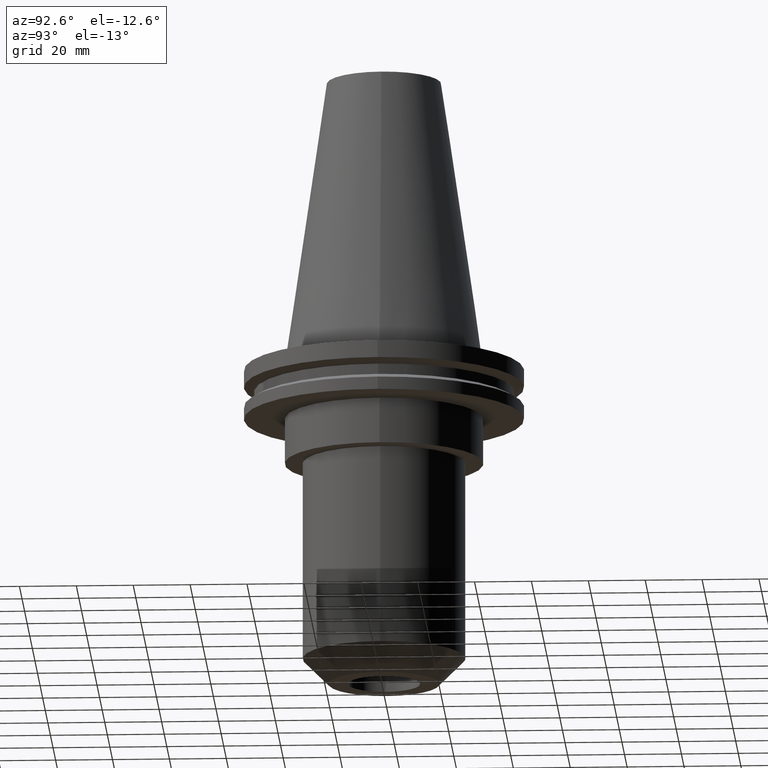
[diagram: clean part render]
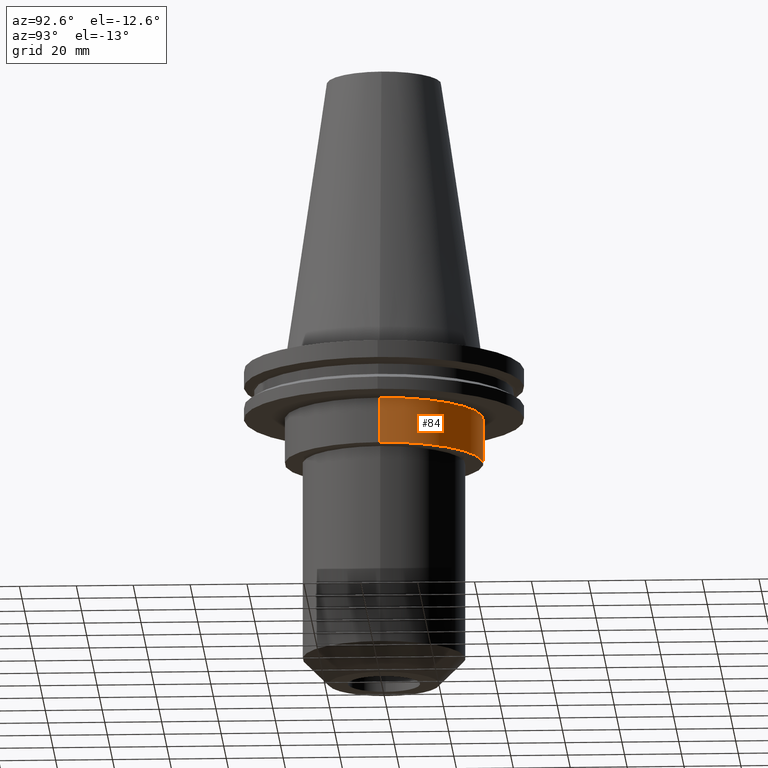
[diagram: same view with one face highlighted and labeled with its STEP entity id]
A machine part, auxiliary view. The second image highlights one B-rep face of the part: STEP entity #84.
In plain terms, the highlighted cylindrical surface (partial cylindrical patch) has radius 34.925 mm, axis along (-0, -0, 1).
Its self-contained STEP definition (entity closure, byte-faithful):
#1 = DIRECTION ( 'NONE',  ( 1.000000000000000000, 0.000000000000000000, 0.000000000000000000 ) ) ;
#25 = LINE ( 'NONE', #374, #527 ) ;
#36 = VECTOR ( 'NONE', #489, 1000.000000000000000 ) ;
#84 = ADVANCED_FACE ( 'NONE', ( #461 ), #194, .T. ) ;
#98 = VERTEX_POINT ( 'NONE', #187 ) ;
#100 = DIRECTION ( 'NONE',  ( -0.000000000000000000, -0.000000000000000000, 1.000000000000000000 ) ) ;
#103 = AXIS2_PLACEMENT_3D ( 'NONE', #751, #100, #370 ) ;
#113 = ORIENTED_EDGE ( 'NONE', *, *, #847, .T. ) ;
#134 = CARTESIAN_POINT ( 'NONE',  ( 34.92499999999999716, 0.000000000000000000, -35.04999999999999716 ) ) ;
#135 = CARTESIAN_POINT ( 'NONE',  ( 0.000000000000000000, 0.000000000000000000, 101.5999999999999943 ) ) ;
#160 = DIRECTION ( 'NONE',  ( -0.000000000000000000, -0.000000000000000000, 1.000000000000000000 ) ) ;
#173 = CARTESIAN_POINT ( 'NONE',  ( 34.92499999999999716, 0.000000000000000000, 101.5999999999999943 ) ) ;
#186 = AXIS2_PLACEMENT_3D ( 'NONE', #351, #601, #1 ) ;
#187 = CARTESIAN_POINT ( 'NONE',  ( 34.92499999999999716, 0.000000000000000000, -19.04999999999999716 ) ) ;
#194 = CYLINDRICAL_SURFACE ( 'NONE', #669, 34.92499999999999716 ) ;
#278 = EDGE_LOOP ( 'NONE', ( #286, #113, #451, #600 ) ) ;
#286 = ORIENTED_EDGE ( 'NONE', *, *, #757, .T. ) ;
#322 = VERTEX_POINT ( 'NONE', #418 ) ;
#351 = CARTESIAN_POINT ( 'NONE',  ( 0.000000000000000000, 0.000000000000000000, -35.04999999999999716 ) ) ;
#369 = EDGE_CURVE ( 'NONE', #650, #98, #633, .T. ) ;
#370 = DIRECTION ( 'NONE',  ( 1.000000000000000000, 0.000000000000000000, 0.000000000000000000 ) ) ;
#374 = CARTESIAN_POINT ( 'NONE',  ( -34.92499999999999716, 4.277078946022130887E-15, 101.5999999999999943 ) ) ;
#397 = DIRECTION ( 'NONE',  ( -0.000000000000000000, -0.000000000000000000, 1.000000000000000000 ) ) ;
#418 = CARTESIAN_POINT ( 'NONE',  ( -34.92499999999999716, 4.277078946022130887E-15, -35.04999999999999716 ) ) ;
#451 = ORIENTED_EDGE ( 'NONE', *, *, #845, .F. ) ;
#461 = FACE_OUTER_BOUND ( 'NONE', #278, .T. ) ;
#467 = CIRCLE ( 'NONE', #103, 34.92499999999999716 ) ;
#489 = DIRECTION ( 'NONE',  ( -0.000000000000000000, -0.000000000000000000, 1.000000000000000000 ) ) ;
#527 = VECTOR ( 'NONE', #160, 1000.000000000000000 ) ;
#600 = ORIENTED_EDGE ( 'NONE', *, *, #369, .F. ) ;
#601 = DIRECTION ( 'NONE',  ( -0.000000000000000000, -0.000000000000000000, 1.000000000000000000 ) ) ;
#633 = LINE ( 'NONE', #173, #36 ) ;
#650 = VERTEX_POINT ( 'NONE', #134 ) ;
#667 = DIRECTION ( 'NONE',  ( 1.000000000000000000, 0.000000000000000000, 0.000000000000000000 ) ) ;
#669 = AXIS2_PLACEMENT_3D ( 'NONE', #135, #397, #667 ) ;
#751 = CARTESIAN_POINT ( 'NONE',  ( 0.000000000000000000, 0.000000000000000000, -19.04999999999999716 ) ) ;
#757 = EDGE_CURVE ( 'NONE', #650, #322, #801, .T. ) ;
#790 = CARTESIAN_POINT ( 'NONE',  ( -34.92499999999999716, 4.277078946022130887E-15, -19.04999999999999716 ) ) ;
#798 = VERTEX_POINT ( 'NONE', #790 ) ;
#801 = CIRCLE ( 'NONE', #186, 34.92499999999999716 ) ;
#845 = EDGE_CURVE ( 'NONE', #98, #798, #467, .T. ) ;
#847 = EDGE_CURVE ( 'NONE', #322, #798, #25, .T. ) ;